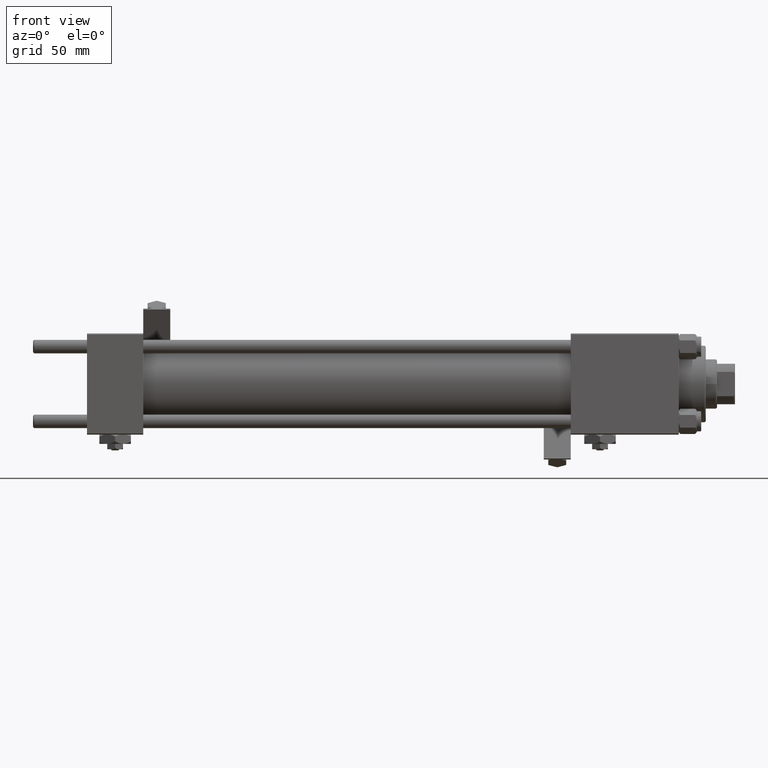
[diagram: clean part render]
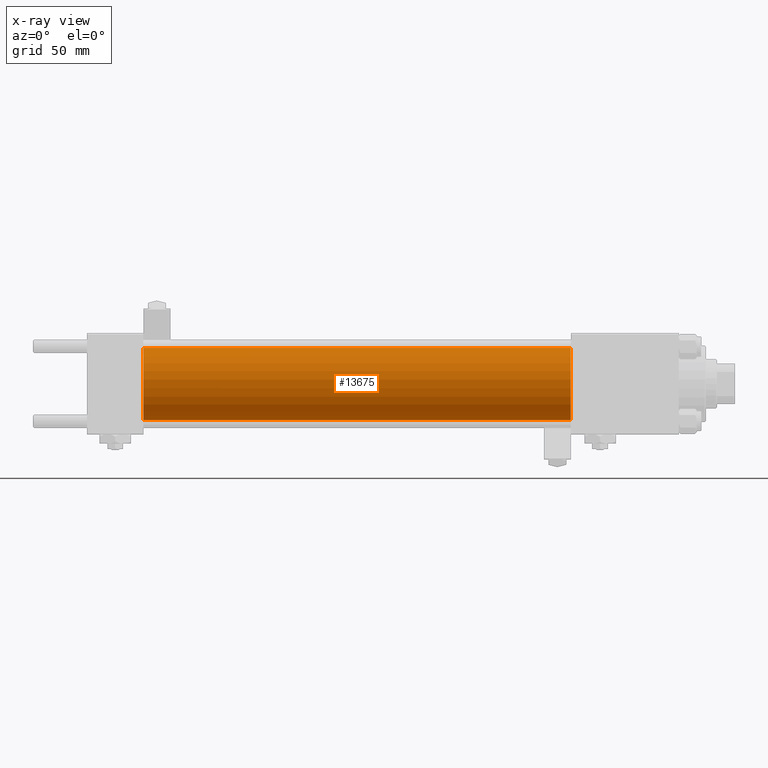
[diagram: x-ray — body ghosted, one internal face saturated and labeled with its STEP entity id]
A machine part, front view, then the same camera in x-ray: the body is ghosted and one INTERNAL B-rep face — a face not visible from any outside direction — is saturated and labeled: STEP entity #13675.
In plain terms, the highlighted cylindrical surface (edge-blend (fillet) strip) has radius 16 mm, axis along (-1, -0, -0).
Its self-contained STEP definition (entity closure, byte-faithful):
#315 = LINE ( 'NONE', #29208, #4081 ) ;
#2702 = EDGE_CURVE ( 'NONE', #41138, #45879, #50053, .T. ) ;
#3152 = CARTESIAN_POINT ( 'NONE',  ( 215.0000000000000000, 1.959434878635765131E-15, -16.00000000000000000 ) ) ;
#4081 = VECTOR ( 'NONE', #45795, 1000.000000000000000 ) ;
#6233 = CARTESIAN_POINT ( 'NONE',  ( 215.0000000000000000, 0.000000000000000000, 0.000000000000000000 ) ) ;
#7168 = LINE ( 'NONE', #3152, #31525 ) ;
#8444 = AXIS2_PLACEMENT_3D ( 'NONE', #33866, #14587, #17823 ) ;
#10807 = EDGE_CURVE ( 'NONE', #39438, #42545, #36636, .T. ) ;
#11006 = ORIENTED_EDGE ( 'NONE', *, *, #49726, .T. ) ;
#13331 = ORIENTED_EDGE ( 'NONE', *, *, #2702, .T. ) ;
#13675 = ADVANCED_FACE ( 'NONE', ( #43150 ), #42363, .F. ) ;
#14377 = DIRECTION ( 'NONE',  ( 1.000000000000000000, 0.000000000000000000, 0.000000000000000000 ) ) ;
#14587 = DIRECTION ( 'NONE',  ( 1.000000000000000000, 0.000000000000000000, 0.000000000000000000 ) ) ;
#15473 = DIRECTION ( 'NONE',  ( -1.000000000000000000, -0.000000000000000000, -0.000000000000000000 ) ) ;
#16589 = CARTESIAN_POINT ( 'NONE',  ( 25.00000000000000000, 0.000000000000000000, 16.00000000000000000 ) ) ;
#17823 = DIRECTION ( 'NONE',  ( 0.000000000000000000, 0.000000000000000000, -1.000000000000000000 ) ) ;
#19227 = ORIENTED_EDGE ( 'NONE', *, *, #10807, .F. ) ;
#19927 = CARTESIAN_POINT ( 'NONE',  ( 25.00000000000000000, 1.959434878635765131E-15, -16.00000000000000000 ) ) ;
#28128 = ORIENTED_EDGE ( 'NONE', *, *, #39059, .F. ) ;
#28233 = EDGE_LOOP ( 'NONE', ( #13331, #11006, #19227, #28128 ) ) ;
#28656 = AXIS2_PLACEMENT_3D ( 'NONE', #47277, #14377, #46765 ) ;
#29208 = CARTESIAN_POINT ( 'NONE',  ( 215.0000000000000000, 0.000000000000000000, 16.00000000000000000 ) ) ;
#31525 = VECTOR ( 'NONE', #15473, 1000.000000000000000 ) ;
#33791 = DIRECTION ( 'NONE',  ( -1.000000000000000000, -0.000000000000000000, -0.000000000000000000 ) ) ;
#33866 = CARTESIAN_POINT ( 'NONE',  ( 25.00000000000000000, 0.000000000000000000, 0.000000000000000000 ) ) ;
#36636 = CIRCLE ( 'NONE', #8444, 16.00000000000000000 ) ;
#39059 = EDGE_CURVE ( 'NONE', #41138, #39438, #315, .T. ) ;
#39438 = VERTEX_POINT ( 'NONE', #16589 ) ;
#39982 = AXIS2_PLACEMENT_3D ( 'NONE', #6233, #33791, #46373 ) ;
#41138 = VERTEX_POINT ( 'NONE', #45643 ) ;
#42363 = CYLINDRICAL_SURFACE ( 'NONE', #39982, 16.00000000000000000 ) ;
#42545 = VERTEX_POINT ( 'NONE', #19927 ) ;
#43150 = FACE_OUTER_BOUND ( 'NONE', #28233, .T. ) ;
#45643 = CARTESIAN_POINT ( 'NONE',  ( 215.0000000000000000, 0.000000000000000000, 16.00000000000000000 ) ) ;
#45795 = DIRECTION ( 'NONE',  ( -1.000000000000000000, -0.000000000000000000, -0.000000000000000000 ) ) ;
#45879 = VERTEX_POINT ( 'NONE', #48971 ) ;
#46373 = DIRECTION ( 'NONE',  ( 0.000000000000000000, 0.000000000000000000, 1.000000000000000000 ) ) ;
#46765 = DIRECTION ( 'NONE',  ( 0.000000000000000000, 0.000000000000000000, -1.000000000000000000 ) ) ;
#47277 = CARTESIAN_POINT ( 'NONE',  ( 215.0000000000000000, 0.000000000000000000, 0.000000000000000000 ) ) ;
#48971 = CARTESIAN_POINT ( 'NONE',  ( 215.0000000000000000, 1.959434878635765131E-15, -16.00000000000000000 ) ) ;
#49726 = EDGE_CURVE ( 'NONE', #45879, #42545, #7168, .T. ) ;
#50053 = CIRCLE ( 'NONE', #28656, 16.00000000000000000 ) ;